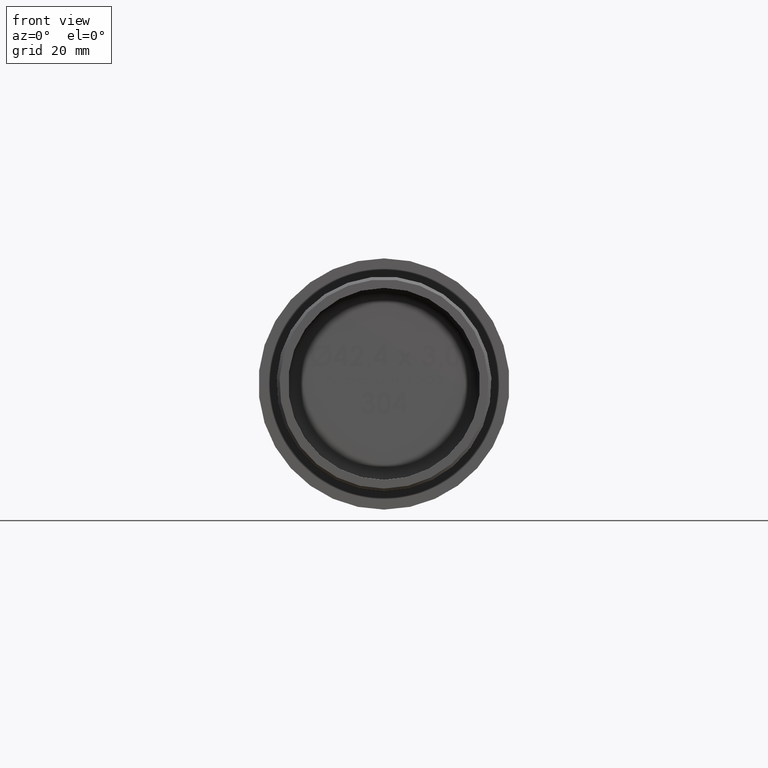
[diagram: clean part render]
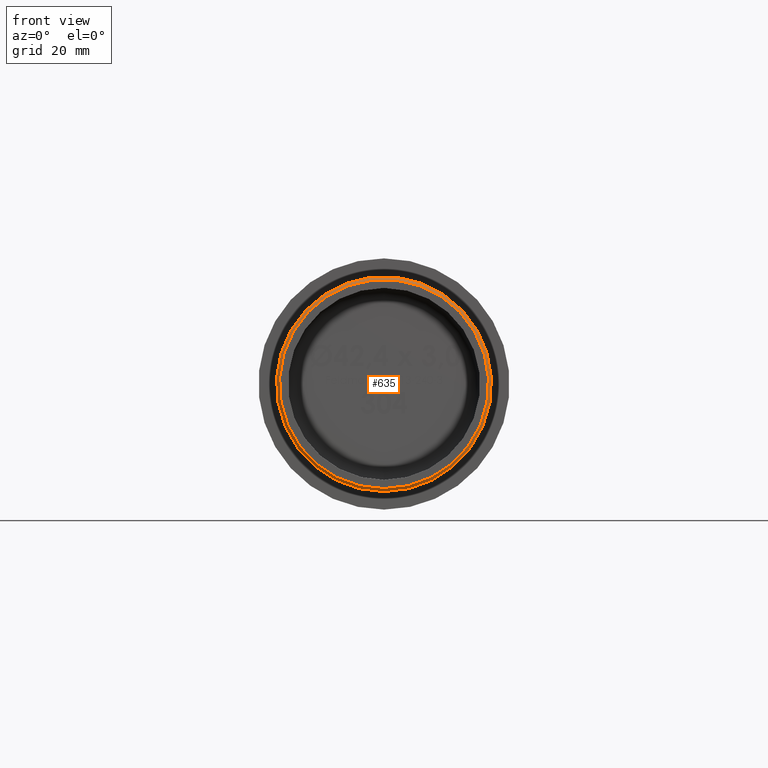
[diagram: same view with one face highlighted and labeled with its STEP entity id]
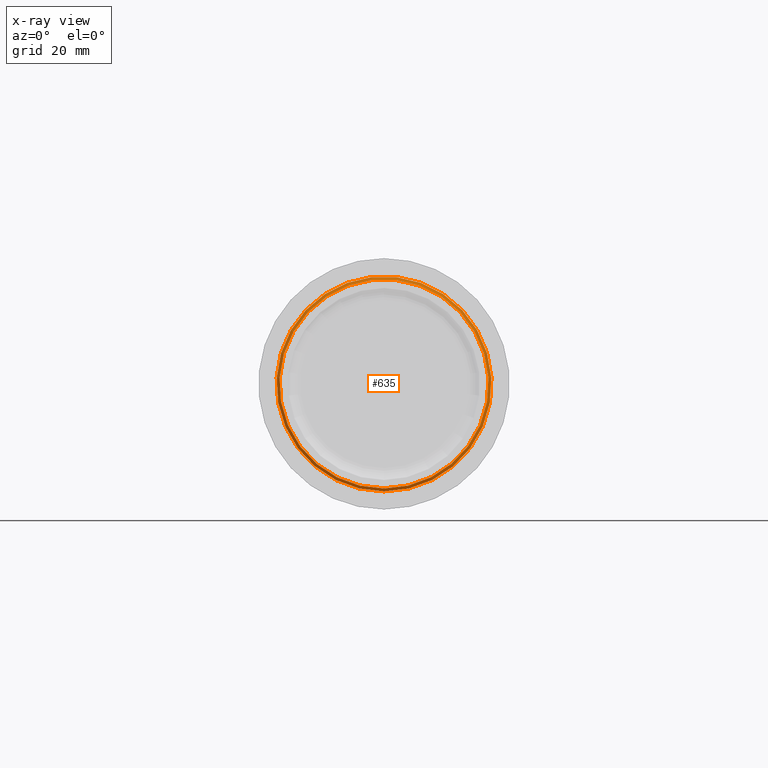
[diagram: x-ray of the same camera — body ghosted, the highlighted face saturated]
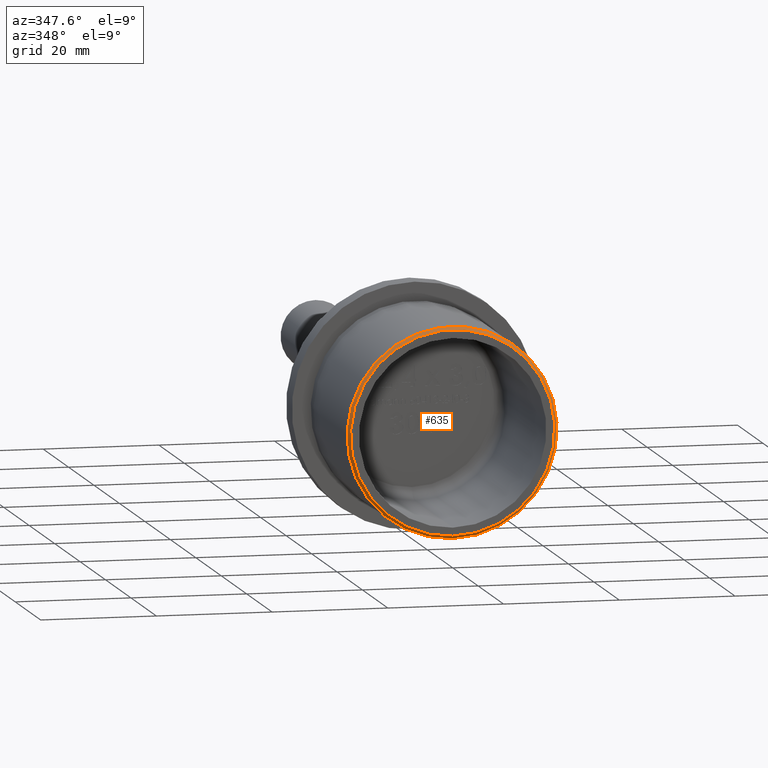
[diagram: same view with one face highlighted and labeled with its STEP entity id]
A machine part, front view. The second image highlights one B-rep face of the part: STEP entity #635.
The next image is the same camera in x-ray: the body ghosted, the highlighted face saturated — about 0% of this face is hidden behind the body in this view.
A second angle (auxiliary view) of the same face is appended — the face is thin or edge-on in the first view.
In plain terms, the highlighted conical surface has half-angle 45 deg.
Its self-contained STEP definition (entity closure, byte-faithful):
#635 = ADVANCED_FACE ( 'NONE', ( #3491, #20031 ), #5136, .T. ) ;
#1695 = VERTEX_POINT ( 'NONE', #19235 ) ;
#1904 = CARTESIAN_POINT ( 'NONE',  ( 0.000000000000000000, 0.5000000000000004441, 0.000000000000000000 ) ) ;
#3491 = FACE_OUTER_BOUND ( 'NONE', #19019, .T. ) ;
#3633 = DIRECTION ( 'NONE',  ( 0.000000000000000000, 0.000000000000000000, -1.000000000000000000 ) ) ;
#5136 = CONICAL_SURFACE ( 'NONE', #21311, 17.65000000000000213, 0.7853981633974482790 ) ;
#5287 = ORIENTED_EDGE ( 'NONE', *, *, #5852, .T. ) ;
#5316 = CARTESIAN_POINT ( 'NONE',  ( 0.000000000000000000, 0.000000000000000000, 0.000000000000000000 ) ) ;
#5852 = EDGE_CURVE ( 'NONE', #22286, #22286, #9851, .T. ) ;
#6899 = CARTESIAN_POINT ( 'NONE',  ( 0.000000000000000000, 0.000000000000000000, 0.000000000000000000 ) ) ;
#8861 = DIRECTION ( 'NONE',  ( -0.000000000000000000, -1.000000000000000000, -0.000000000000000000 ) ) ;
#8949 = EDGE_LOOP ( 'NONE', ( #17995 ) ) ;
#9208 = CARTESIAN_POINT ( 'NONE',  ( 0.000000000000000000, 0.5000000000000004441, -18.15000000000000213 ) ) ;
#9851 = CIRCLE ( 'NONE', #13330, 18.15000000000000213 ) ;
#11831 = CIRCLE ( 'NONE', #14989, 17.65000000000000213 ) ;
#13330 = AXIS2_PLACEMENT_3D ( 'NONE', #1904, #14287, #3633 ) ;
#13757 = EDGE_CURVE ( 'NONE', #1695, #1695, #11831, .T. ) ;
#14149 = DIRECTION ( 'NONE',  ( 0.000000000000000000, 0.000000000000000000, 1.000000000000000000 ) ) ;
#14287 = DIRECTION ( 'NONE',  ( -0.000000000000000000, -1.000000000000000000, -0.000000000000000000 ) ) ;
#14989 = AXIS2_PLACEMENT_3D ( 'NONE', #5316, #8861, #19050 ) ;
#17550 = DIRECTION ( 'NONE',  ( 0.000000000000000000, 1.000000000000000000, 0.000000000000000000 ) ) ;
#17995 = ORIENTED_EDGE ( 'NONE', *, *, #13757, .F. ) ;
#19019 = EDGE_LOOP ( 'NONE', ( #5287 ) ) ;
#19050 = DIRECTION ( 'NONE',  ( 0.000000000000000000, 0.000000000000000000, -1.000000000000000000 ) ) ;
#19235 = CARTESIAN_POINT ( 'NONE',  ( 0.000000000000000000, 0.000000000000000000, -17.65000000000000213 ) ) ;
#20031 = FACE_BOUND ( 'NONE', #8949, .T. ) ;
#21311 = AXIS2_PLACEMENT_3D ( 'NONE', #6899, #17550, #14149 ) ;
#22286 = VERTEX_POINT ( 'NONE', #9208 ) ;